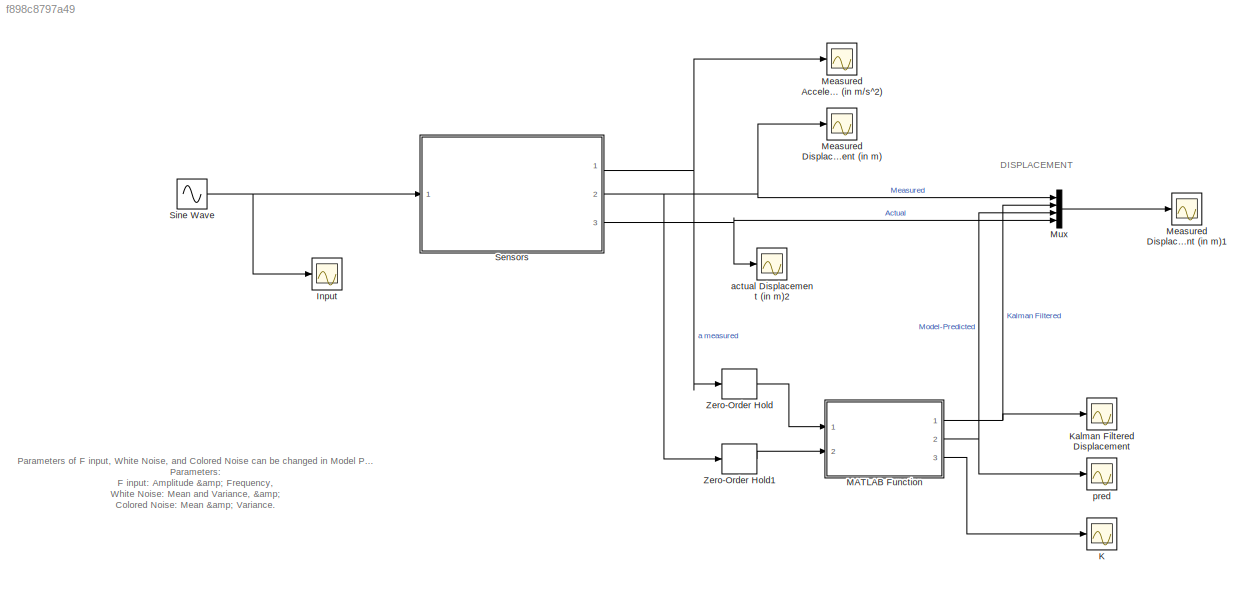
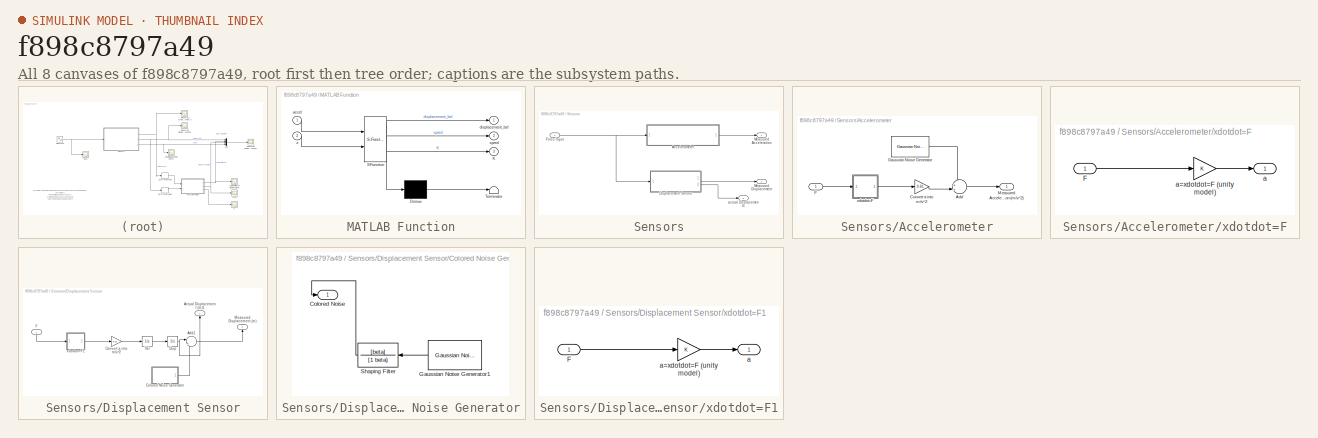
[diagram: thumbnail index - all 8 canvases of the model, root first then tree order]
MODEL slx_f898c8797a49
KIND model
CONFIG AbsTol = auto
CONFIG EnableMultiTasking = on
CONFIG FixedStep = auto
CONFIG InitFcn = WhiteNoise_Mean=0;\nWhiteNoise_Variance=1;\n\nWhiteNoise_Mean2=0;\nWhiteNoise_Variance2=1;\n\nF_amplitude = 1;\nF_frequency =10; % rad/s\n\nbeta=1000;\n\ndt = 0.01;
CONFIG MaxStep = 0.01
CONFIG MinStep = auto
CONFIG RelTol = 1e-3
CONFIG SampleTimeConstraint = Unconstrained
CONFIG Solver = ode45
CONFIG SolverName = ode45
CONFIG StartTime = 0.0
CONFIG StopTime = 5
BLOCK [Scope] Input
  NumInputPorts = 1
  Ports = [1]
  ScopeSpecificationString = Simulink.scopes.TimeScopeBlockCfg('CurrentConfiguration', extmgr.ConfigurationSet(extmgr.Configuration('Core','General UI',true,'FigureColor',[0.156862745098039 0.156862745098039 0.156862745098039]),extmgr.Configuration('Core','Source UI',true),extmgr.Configuration('Sources','WiredSimulink',true,'DataLoggingVariableName','ScopeData4','DataLoggingSaveFormat','Array','DataLoggingDecimation','1','Dat...<+3156ch>
BLOCK [Scope] K
  NumInputPorts = 1
  Ports = [1]
  ScopeSpecificationString = Simulink.scopes.TimeScopeBlockCfg('CurrentConfiguration', extmgr.ConfigurationSet(extmgr.Configuration('Core','General UI',true,'FigureColor',[0.156862745098039 0.156862745098039 0.156862745098039]),extmgr.Configuration('Core','Source UI',true),extmgr.Configuration('Sources','WiredSimulink',true,'DataLoggingVariableName','ScopeData7','DataLoggingSaveFormat','Array','DataLoggingDecimation','1','Dat...<+3259ch>
BLOCK [Scope] Kalman Filtered Displacement
  NumInputPorts = 1
  Ports = [1]
  ScopeSpecificationString = Simulink.scopes.TimeScopeBlockCfg('CurrentConfiguration', extmgr.ConfigurationSet(extmgr.Configuration('Core','General UI',true,'FigureColor',[0.156862745098039 0.156862745098039 0.156862745098039]),extmgr.Configuration('Core','Source UI',true),extmgr.Configuration('Sources','WiredSimulink',true,'DataLoggingVariableName','ScopeData1','DataLoggingSaveFormat','Array','DataLoggingDecimation','1','Dat...<+3162ch>
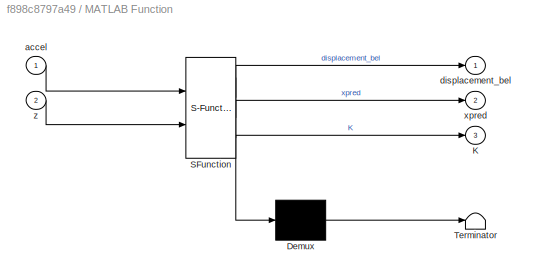
BLOCK [SubSystem] MATLAB Function
  ErrorFcn = Stateflow.Translate.translate
  PermitHierarchicalResolution = ExplicitOnly
  Ports = [2, 3]
  RequestExecContextInheritance = off
  SFBlockType = MATLAB Function
  TreatAsAtomicUnit = on
  Variant = off
BLOCK [Demux] MATLAB Function/ Demux 
  Outputs = 1
  Ports = [1, 1]
BLOCK [S-Function] MATLAB Function/ SFunction 
  EnableBusSupport = on
  FunctionName = sf_sfun
  PortCounts = [2 4]
  Ports = [2, 4]
  SFcnIsStateOwnerBlock = off
  SFunctionDeploymentMode = off
  Tag = Stateflow S-Function MultiSensorsR2014a 2
BLOCK [Terminator] MATLAB Function/ Terminator 
BLOCK [Outport] MATLAB Function/K
  IconDisplay = Port number
  Port = 3
BLOCK [Inport] MATLAB Function/accel
  IconDisplay = Port number
BLOCK [Outport] MATLAB Function/displacement_bel
  IconDisplay = Port number
BLOCK [Outport] MATLAB Function/xpred
  IconDisplay = Port number
  Port = 2
BLOCK [Inport] MATLAB Function/z
  IconDisplay = Port number
  Port = 2
BLOCK [Scope] Measured Acceleration (in m//s^2)
  NumInputPorts = 1
  Ports = [1]
  ScopeSpecificationString = Simulink.scopes.TimeScopeBlockCfg('CurrentConfiguration', extmgr.ConfigurationSet(extmgr.Configuration('Core','General UI',true,'FigureColor',[0.156862745098039 0.156862745098039 0.156862745098039]),extmgr.Configuration('Core','Source UI',true),extmgr.Configuration('Sources','WiredSimulink',true,'DataLoggingSaveFormat','Array','DataLoggingDecimation','1','DataLoggingDecimateData',true),extmgr.Conf...<+3132ch>
BLOCK [Scope] Measured Displacement (in m)
  NumInputPorts = 1
  Ports = [1]
  ScopeSpecificationString = Simulink.scopes.TimeScopeBlockCfg('CurrentConfiguration', extmgr.ConfigurationSet(extmgr.Configuration('Core','General UI',true,'FigureColor',[0.156862745098039 0.156862745098039 0.156862745098039]),extmgr.Configuration('Core','Source UI',true),extmgr.Configuration('Sources','WiredSimulink',true,'DataLoggingVariableName','ScopeData3','DataLoggingSaveFormat','Array','DataLoggingDecimation','1','Dat...<+3157ch>
BLOCK [Scope] Measured Displacement (in m)1
  NumInputPorts = 1
  Ports = [1]
  ScopeSpecificationString = Simulink.scopes.TimeScopeBlockCfg('CurrentConfiguration', extmgr.ConfigurationSet(extmgr.Configuration('Core','General UI',true,'FigureColor',[0.156862745098039 0.156862745098039 0.156862745098039]),extmgr.Configuration('Core','Source UI',true),extmgr.Configuration('Sources','WiredSimulink',true,'DataLoggingVariableName','ScopeData5','DataLoggingSaveFormat','Array','DataLoggingDecimation','1','Dat...<+3279ch>
BLOCK [Mux] Mux
  DisplayOption = bar
  Ports = [4, 1]
BLOCK [SubSystem] Sensors
  Ports = [1, 3]
  RequestExecContextInheritance = off
  Variant = off
BLOCK [SubSystem] Sensors/Accelerometer
  Ports = [1, 1]
  RequestExecContextInheritance = off
  Variant = off
BLOCK [Sum] Sensors/Accelerometer/Add
  IconShape = round
  InputSameDT = off
  Inputs = ++|
  OutDataTypeStr = Inherit: Inherit via internal rule
  Ports = [2, 1]
  SaturateOnIntegerOverflow = off
BLOCK [Gain] Sensors/Accelerometer/Convert a into m//s^2
  Gain = 9.81
  OutDataTypeStr = Inherit: Inherit via internal rule
  ParamDataTypeStr = Inherit: Inherit via internal rule
  SaturateOnIntegerOverflow = off
BLOCK [Inport] Sensors/Accelerometer/F
  IconDisplay = Port number
BLOCK [Reference] Sensors/Accelerometer/Gaussian Noise Generator  REF=commnoisgen2/Gaussian Noise
Generator
  Ports = [0, 1]
  SourceBlock = commnoisgen2/Gaussian Noise\nGenerator
  SourceType = Gaussian Noise Generator
BLOCK [Outport] Sensors/Accelerometer/Measured Acceleration (m//s^2)
  IconDisplay = Port number
BLOCK [SubSystem] Sensors/Accelerometer/xdotdot=F
  Ports = [1, 1]
  RequestExecContextInheritance = off
  Variant = off
BLOCK [Inport] Sensors/Accelerometer/xdotdot=F/F
  IconDisplay = Port number
BLOCK [Outport] Sensors/Accelerometer/xdotdot=F/a
  IconDisplay = Port number
BLOCK [Gain] Sensors/Accelerometer/xdotdot=F/a=xdotdot=F (unity model)
  OutDataTypeStr = Inherit: Inherit via internal rule
  ParamDataTypeStr = Inherit: Inherit via internal rule
  SaturateOnIntegerOverflow = off
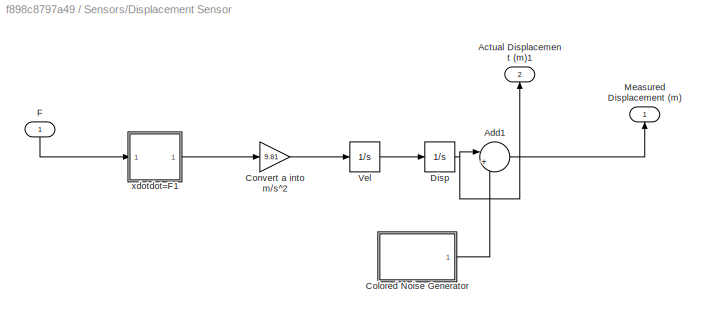
BLOCK [SubSystem] Sensors/Displacement Sensor
  Ports = [1, 2]
  RequestExecContextInheritance = off
  Variant = off
BLOCK [Outport] Sensors/Displacement Sensor/Actual Displacement (m)1
  IconDisplay = Port number
  Port = 2
BLOCK [Sum] Sensors/Displacement Sensor/Add1
  IconShape = round
  InputSameDT = off
  Inputs = |++
  OutDataTypeStr = Inherit: Inherit via internal rule
  Ports = [2, 1]
  SaturateOnIntegerOverflow = off
BLOCK [SubSystem] Sensors/Displacement Sensor/Colored Noise Generator
  Ports = [0, 1]
  RequestExecContextInheritance = off
  Variant = off
BLOCK [Outport] Sensors/Displacement Sensor/Colored Noise Generator/Colored Noise
  IconDisplay = Port number
BLOCK [Reference] Sensors/Displacement Sensor/Colored Noise Generator/Gaussian Noise Generator1  REF=commnoisgen2/Gaussian Noise
Generator
  Ports = [0, 1]
  SourceBlock = commnoisgen2/Gaussian Noise\nGenerator
  SourceType = Gaussian Noise Generator
BLOCK [TransferFcn] Sensors/Displacement Sensor/Colored Noise Generator/Shaping Filter
  Denominator = [1 beta]
  Numerator = [beta]
BLOCK [Gain] Sensors/Displacement Sensor/Convert a into m//s^2
  Gain = 9.81
  OutDataTypeStr = Inherit: Inherit via internal rule
  ParamDataTypeStr = Inherit: Inherit via internal rule
  SaturateOnIntegerOverflow = off
BLOCK [Integrator] Sensors/Displacement Sensor/Disp
  Ports = [1, 1]
BLOCK [Inport] Sensors/Displacement Sensor/F
  IconDisplay = Port number
BLOCK [Outport] Sensors/Displacement Sensor/Measured Displacement (m)
  IconDisplay = Port number
BLOCK [Integrator] Sensors/Displacement Sensor/Vel
  Ports = [1, 1]
BLOCK [SubSystem] Sensors/Displacement Sensor/xdotdot=F1
  Ports = [1, 1]
  RequestExecContextInheritance = off
  Variant = off
BLOCK [Inport] Sensors/Displacement Sensor/xdotdot=F1/F
  IconDisplay = Port number
BLOCK [Outport] Sensors/Displacement Sensor/xdotdot=F1/a
  IconDisplay = Port number
BLOCK [Gain] Sensors/Displacement Sensor/xdotdot=F1/a=xdotdot=F (unity model)
  OutDataTypeStr = Inherit: Inherit via internal rule
  ParamDataTypeStr = Inherit: Inherit via internal rule
  SaturateOnIntegerOverflow = off
BLOCK [Inport] Sensors/Force Input
  IconDisplay = Port number
BLOCK [Outport] Sensors/Measured Acceleration
  IconDisplay = Port number
BLOCK [Outport] Sensors/Measured Displacement
  IconDisplay = Port number
  Port = 2
BLOCK [Outport] Sensors/actual Displacement1
  IconDisplay = Port number
  Port = 3
BLOCK [Sin] Sine Wave
  Amplitude = F_amplitude
  Frequency = F_frequency
  Phase = 6*rand
  Ports = [0, 1]
  SampleTime = 0
BLOCK [ZeroOrderHold] Zero-Order Hold
  SampleTime = dt
BLOCK [ZeroOrderHold] Zero-Order Hold1
  SampleTime = dt
BLOCK [Scope] actual Displacement (in m)2
  NumInputPorts = 1
  Ports = [1]
  ScopeSpecificationString = Simulink.scopes.TimeScopeBlockCfg('CurrentConfiguration', extmgr.ConfigurationSet(extmgr.Configuration('Core','General UI',true,'FigureColor',[0.156862745098039 0.156862745098039 0.156862745098039]),extmgr.Configuration('Core','Source UI',true),extmgr.Configuration('Sources','WiredSimulink',true,'DataLoggingVariableName','ScopeData6','DataLoggingSaveFormat','Array','DataLoggingDecimation','1','Dat...<+3155ch>
BLOCK [Scope] pred
  NumInputPorts = 1
  Ports = [1]
  ScopeSpecificationString = Simulink.scopes.TimeScopeBlockCfg('CurrentConfiguration', extmgr.ConfigurationSet(extmgr.Configuration('Core','General UI',true,'FigureColor',[0.156862745098039 0.156862745098039 0.156862745098039]),extmgr.Configuration('Core','Source UI',true),extmgr.Configuration('Sources','WiredSimulink',true,'DataLoggingVariableName','ScopeData2','DataLoggingSaveFormat','Array','DataLoggingDecimation','1','Dat...<+3237ch>
ANNOTATION (root): Parameters of F input, White Noise, and Colored Noise can be changed in Model Properties. Parameters: F input: Amplitude & Frequency, White Noise: Mean and Variance, & Colored Noise: Mean & Variance.
ANNOTATION (root): DISPLACEMENT
NET MATLAB Function:1 -> Kalman Filtered Displacement:1, Mux:2
NET MATLAB Function:2 -> Mux:3, pred:1
LINE MATLAB Function:3 -> K:1
LINE Mux:1 -> Measured Displacement (in m)1:1
LINE Sensors/Accelerometer/Add:1 -> Sensors/Accelerometer/Measured Acceleration (m//s^2):1
LINE Sensors/Accelerometer/Convert a into m//s^2:1 -> Sensors/Accelerometer/Add:2
LINE Sensors/Accelerometer/F:1 -> Sensors/Accelerometer/xdotdot=F:1
LINE Sensors/Accelerometer/Gaussian Noise Generator:1 -> Sensors/Accelerometer/Add:1
LINE Sensors/Accelerometer/xdotdot=F/F:1 -> Sensors/Accelerometer/xdotdot=F/a=xdotdot=F (unity model):1
LINE Sensors/Accelerometer/xdotdot=F/a=xdotdot=F (unity model):1 -> Sensors/Accelerometer/xdotdot=F/a:1
LINE Sensors/Accelerometer/xdotdot=F:1 -> Sensors/Accelerometer/Convert a into m//s^2:1
LINE Sensors/Accelerometer:1 -> Sensors/Measured Acceleration:1
LINE Sensors/Displacement Sensor/Add1:1 -> Sensors/Displacement Sensor/Measured Displacement (m):1
LINE Sensors/Displacement Sensor/Colored Noise Generator/Gaussian Noise Generator1:1 -> Sensors/Displacement Sensor/Colored Noise Generator/Shaping Filter:1
LINE Sensors/Displacement Sensor/Colored Noise Generator/Shaping Filter:1 -> Sensors/Displacement Sensor/Colored Noise Generator/Colored Noise:1
LINE Sensors/Displacement Sensor/Colored Noise Generator:1 -> Sensors/Displacement Sensor/Add1:2
LINE Sensors/Displacement Sensor/Convert a into m//s^2:1 -> Sensors/Displacement Sensor/Vel:1
NET Sensors/Displacement Sensor/Disp:1 -> Sensors/Displacement Sensor/Actual Displacement (m)1:1, Sensors/Displacement Sensor/Add1:1
LINE Sensors/Displacement Sensor/F:1 -> Sensors/Displacement Sensor/xdotdot=F1:1
LINE Sensors/Displacement Sensor/Vel:1 -> Sensors/Displacement Sensor/Disp:1
LINE Sensors/Displacement Sensor/xdotdot=F1/F:1 -> Sensors/Displacement Sensor/xdotdot=F1/a=xdotdot=F (unity model):1
LINE Sensors/Displacement Sensor/xdotdot=F1/a=xdotdot=F (unity model):1 -> Sensors/Displacement Sensor/xdotdot=F1/a:1
LINE Sensors/Displacement Sensor/xdotdot=F1:1 -> Sensors/Displacement Sensor/Convert a into m//s^2:1
LINE Sensors/Displacement Sensor:1 -> Sensors/Measured Displacement:1
LINE Sensors/Displacement Sensor:2 -> Sensors/actual Displacement1:1
NET Sensors/Force Input:1 -> Sensors/Accelerometer:1, Sensors/Displacement Sensor:1
NET Sensors:1 -> Measured Acceleration (in m//s^2):1, Zero-Order Hold:1
NET Sensors:2 -> Measured Displacement (in m):1, Mux:1, Zero-Order Hold1:1
NET Sensors:3 -> Mux:4, actual Displacement (in m)2:1
NET Sine Wave:1 -> Input:1, Sensors:1
LINE Zero-Order Hold1:1 -> MATLAB Function:2
LINE Zero-Order Hold:1 -> MATLAB Function:1
note: NET lines group one-source signal fan-out (src -> all destinations, sorted); 1:1 wires keep LINE
CHART MATLAB Function states=1 transitions=1
  STATE_LABEL 'eML_blk_kernel()'
  STATE_LABEL 'SCRIPT:\nfunction [displacement_bel, xpred, K] = KF(accel,z)\npersistent xbel\npersistent Pbel\npersistent xmodel\n\nif isempty(xbel)\n    xbel = [0; 0];\nend\nif isempty(Pbel)\n    Pbel = [1 0; 0 1];\nend\nif isempty(xmodel)\n    xmodel = [0; 0];\nend\n\n%%%%%Kalman Filter Parameters\ndt = 0.01;\n%continuous SS\n% A = [0 1; 0 0];\n% B = [0; 1];\n% C = [1 0];\n% D = 0;\n%Discrete SS\nA = [0 1; -1 2];\nB = [0; dt^2];\nC = [...<+286ch>'
